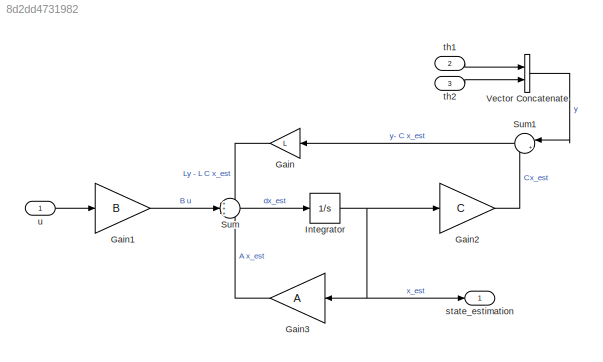
MODEL slx_8d2dd4731982
KIND model
CONFIG AbsTol = auto
CONFIG EnableMultiTasking = off
CONFIG FixedStep = auto
CONFIG MaxStep = auto
CONFIG MinStep = auto
CONFIG RelTol = 1e-3
CONFIG SampleTimeConstraint = Unconstrained
CONFIG SolverName = VariableStepAuto
CONFIG StartTime = 0.0
CONFIG StopTime = 10.0
BLOCK [Gain] Gain
  Gain = L
  Multiplication = Matrix(K*u)
  NameLocation = top
BLOCK [Gain] Gain1
  Gain = B
  Multiplication = Matrix(K*u)
BLOCK [Gain] Gain2
  Gain = C
  Multiplication = Matrix(K*u)
BLOCK [Gain] Gain3
  Gain = A
  Multiplication = Matrix(K*u)
  NameLocation = top
BLOCK [Integrator] Integrator
  InitialCondition = obs_x0
  Ports = [1, 1]
BLOCK [Sum] Sum
  Inputs = +++
  Ports = [3, 1]
BLOCK [Sum] Sum1
  Inputs = |+-
  NameLocation = top
  Ports = [2, 1]
BLOCK [Concatenate] Vector Concatenate
  Ports = [2, 1]
BLOCK [Outport] state_estimation
BLOCK [Inport] th1
  NameLocation = top
  Port = 2
BLOCK [Inport] th2
  Port = 3
BLOCK [Inport] u
LINE Gain1:1 -> Sum:2
LINE Gain2:1 -> Sum1:2
LINE Gain3:1 -> Sum:3
LINE Gain:1 -> Sum:1
NET Integrator:1 -> Gain2:1, Gain3:1, state_estimation:1
LINE Sum1:1 -> Gain:1
LINE Sum:1 -> Integrator:1
LINE Vector Concatenate:1 -> Sum1:1
LINE th1:1 -> Vector Concatenate:1
LINE th2:1 -> Vector Concatenate:2
LINE u:1 -> Gain1:1
note: NET lines group one-source signal fan-out (src -> all destinations, sorted); 1:1 wires keep LINE
